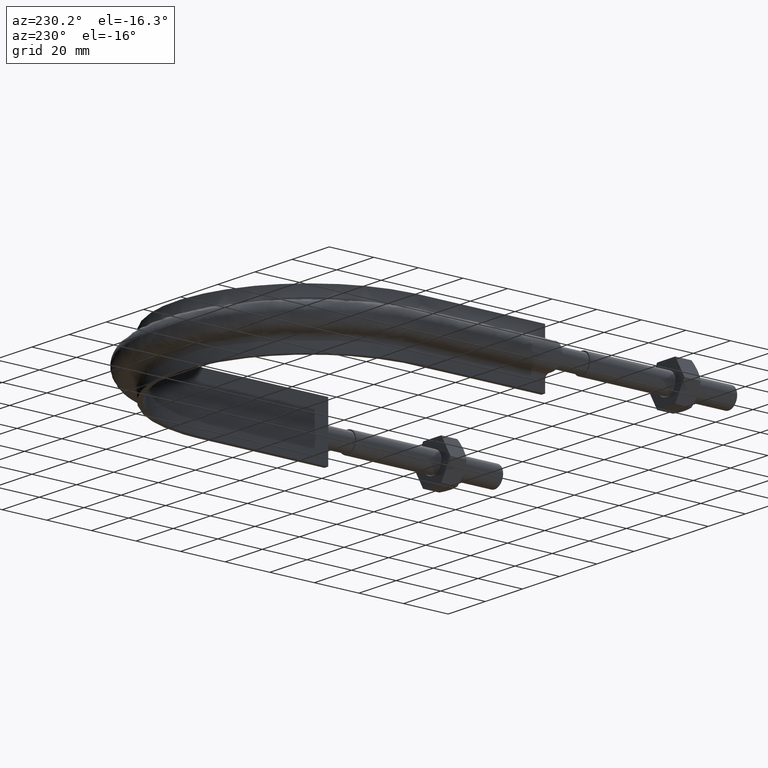
[diagram: clean part render]
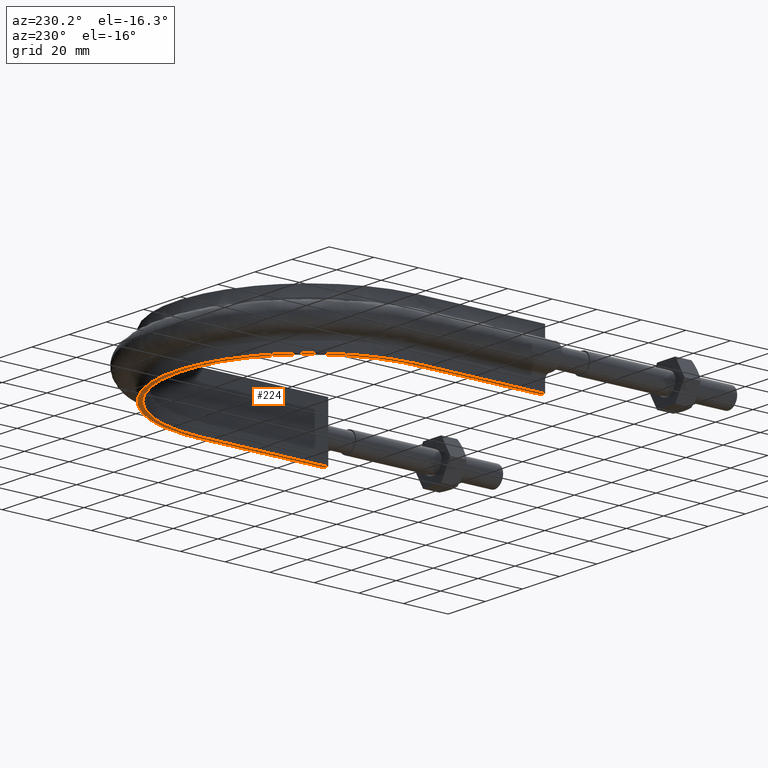
[diagram: same view with one face highlighted and labeled with its STEP entity id]
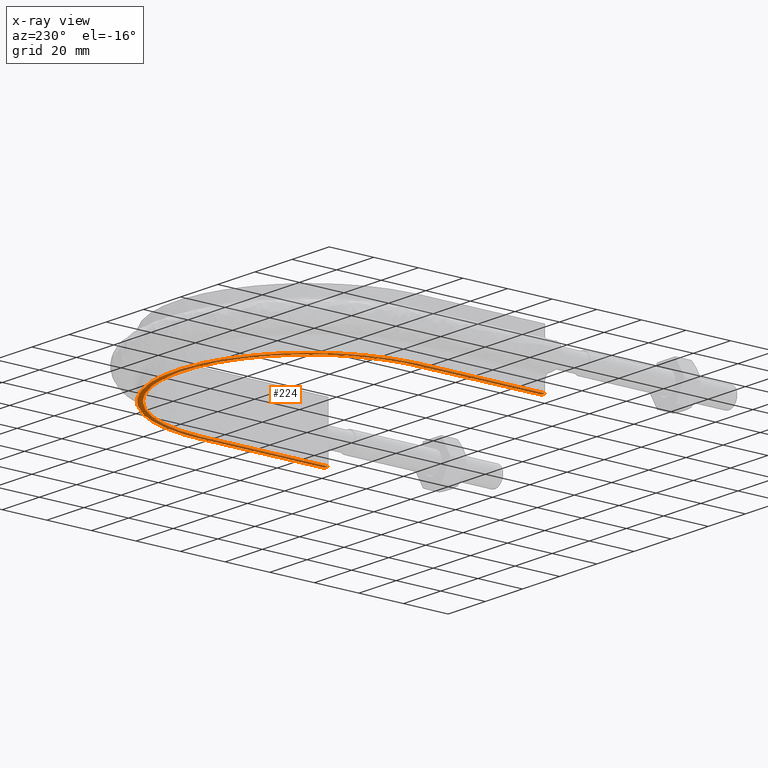
[diagram: x-ray of the same camera — body ghosted, the highlighted face saturated]
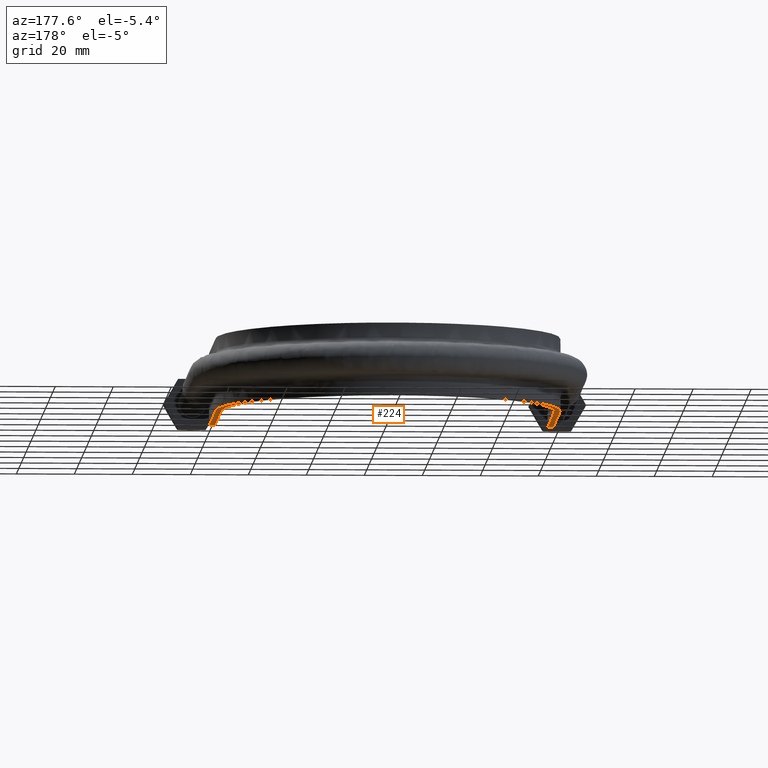
[diagram: same view with one face highlighted and labeled with its STEP entity id]
A machine part, auxiliary view. The second image highlights one B-rep face of the part: STEP entity #224.
The next image is the same camera in x-ray: the body ghosted, the highlighted face saturated — about 0% of this face is hidden behind the body in this view.
A second angle (auxiliary view) of the same face is appended — the face is thin or edge-on in the first view.
In plain terms, the highlighted planar face has unit normal (0, 0, 1).
Its self-contained STEP definition (entity closure, byte-faithful):
#224 = ADVANCED_FACE( '', ( #305 ), #306, .F. );
#305 = FACE_OUTER_BOUND( '', #968, .T. );
#306 = PLANE( '', #969 );
#968 = EDGE_LOOP( '', ( #1330, #1331, #1332, #1333 ) );
#969 = AXIS2_PLACEMENT_3D( '', #1334, #1335, #1336 );
#1330 = ORIENTED_EDGE( '', *, *, #1828, .F. );
#1331 = ORIENTED_EDGE( '', *, *, #1820, .F. );
#1332 = ORIENTED_EDGE( '', *, *, #1827, .F. );
#1333 = ORIENTED_EDGE( '', *, *, #1825, .F. );
#1334 = CARTESIAN_POINT( '', ( 75.0000000000000, 209.300000000000, -12.5000000000000 ) );
#1335 = DIRECTION( '', ( 0.000000000000000, 0.000000000000000, 1.00000000000000 ) );
#1336 = DIRECTION( '', ( 1.00000000000000, 0.000000000000000, 0.000000000000000 ) );
#1820 = EDGE_CURVE( '', #1972, #1968, #1974, .T. );
#1825 = EDGE_CURVE( '', #1980, #1982, #1983, .T. );
#1827 = EDGE_CURVE( '', #1982, #1972, #1985, .F. );
#1828 = EDGE_CURVE( '', #1968, #1980, #1986, .F. );
#1968 = VERTEX_POINT( '', #2214 );
#1972 = VERTEX_POINT( '', #2220 );
#1974 = LINE( '', #2252, #2253 );
#1980 = VERTEX_POINT( '', #2362 );
#1982 = VERTEX_POINT( '', #2365 );
#1983 = LINE( '', #2366, #2367 );
#1985 = B_SPLINE_CURVE_WITH_KNOTS( '', 3, ( #2399, #2400, #2401, #2402, #2403, #2404, #2405, #2406, #2407, #2408, #2409, #2410, #2411, #2412, #2413, #2414 ), .UNSPECIFIED., .F., .F., ( 4, 3, 1, 1, 1, 1, 1, 1, 3, 4 ), ( 0.0630615640598999, 1.00000000000000, 2.00000000000000, 3.00000000000000, 4.00000000000000, 5.00000000000000, 6.00000000000000, 7.00000000000000, 8.00000000000000, 8.93693843594010 ), .UNSPECIFIED. );
#1986 = B_SPLINE_CURVE_WITH_KNOTS( '', 3, ( #2415, #2416, #2417, #2418, #2419, #2420, #2421, #2422, #2423, #2424, #2425, #2426, #2427, #2428, #2429, #2430 ), .UNSPECIFIED., .F., .F., ( 4, 3, 1, 1, 1, 1, 1, 1, 3, 4 ), ( -8.93693843594010, -8.00000000000000, -7.00000000000000, -6.00000000000000, -5.00000000000000, -4.00000000000000, -3.00000000000000, -2.00000000000000, -1.00000000000000, -0.0630615640599001 ), .UNSPECIFIED. );
#2214 = CARTESIAN_POINT( '', ( -57.4000000000000, 79.3000000000000, -12.5000000000000 ) );
#2220 = CARTESIAN_POINT( '', ( -59.4000000000000, 79.3000000000000, -12.5000000000000 ) );
#2252 = CARTESIAN_POINT( '', ( -75.0000000000000, 79.3000000000000, -12.5000000000000 ) );
#2253 = VECTOR( '', #2857, 1000.00000000000 );
#2362 = CARTESIAN_POINT( '', ( 57.4000000000000, 79.3000000000000, -12.5000000000000 ) );
#2365 = CARTESIAN_POINT( '', ( 59.4000000000000, 79.3000000000000, -12.5000000000000 ) );
#2366 = CARTESIAN_POINT( '', ( -75.0000000000000, 79.3000000000000, -12.5000000000000 ) );
#2367 = VECTOR( '', #2860, 1000.00000000000 );
#2399 = CARTESIAN_POINT( '', ( -59.4000000000000, 79.3000000000000, -12.5000000000000 ) );
#2400 = CARTESIAN_POINT( '', ( -59.4000000000000, 98.0700000000001, -12.5000000000000 ) );
#2401 = CARTESIAN_POINT( '', ( -59.4000000000000, 116.840000000000, -12.5000000000000 ) );
#2402 = CARTESIAN_POINT( '', ( -59.4000000000000, 135.610000000000, -12.5000000000000 ) );
#2403 = CARTESIAN_POINT( '', ( -59.4000000000000, 144.484817836499, -12.5000000000000 ) );
#2404 = CARTESIAN_POINT( '', ( -55.3444933644878, 162.266836188810, -12.5000000000000 ) );
#2405 = CARTESIAN_POINT( '', ( -38.2995777447149, 183.635011205915, -12.5000000000000 ) );
#2406 = CARTESIAN_POINT( '', ( -13.6689610391051, 195.497859339138, -12.5000000000000 ) );
#2407 = CARTESIAN_POINT( '', ( 13.6689610391052, 195.497859339137, -12.5000000000000 ) );
#2408 = CARTESIAN_POINT( '', ( 38.2995777447150, 183.635011205915, -12.5000000000000 ) );
#2409 = CARTESIAN_POINT( '', ( 55.3444933644878, 162.266836188810, -12.5000000000000 ) );
#2410 = CARTESIAN_POINT( '', ( 59.4000000000000, 144.484817836499, -12.5000000000000 ) );
#2411 = CARTESIAN_POINT( '', ( 59.4000000000000, 135.610000000000, -12.5000000000000 ) );
#2412 = CARTESIAN_POINT( '', ( 59.4000000000000, 116.840000000000, -12.5000000000000 ) );
#2413 = CARTESIAN_POINT( '', ( 59.4000000000000, 98.0700000000000, -12.5000000000000 ) );
#2414 = CARTESIAN_POINT( '', ( 59.4000000000000, 79.3000000000000, -12.5000000000000 ) );
#2415 = CARTESIAN_POINT( '', ( 57.4000000000000, 79.3000000000000, -12.5000000000000 ) );
#2416 = CARTESIAN_POINT( '', ( 57.4000000000000, 98.0700000000000, -12.5000000000000 ) );
#2417 = CARTESIAN_POINT( '', ( 57.4000000000000, 116.840000000000, -12.5000000000000 ) );
#2418 = CARTESIAN_POINT( '', ( 57.4000000000000, 135.610000000000, -12.5000000000000 ) );
#2419 = CARTESIAN_POINT( '', ( 57.4000000000000, 144.180493203978, -12.5000000000000 ) );
#2420 = CARTESIAN_POINT( '', ( 53.4810424094545, 161.371852668646, -12.5000000000000 ) );
#2421 = CARTESIAN_POINT( '', ( 37.0100296725023, 182.017335605858, -12.5000000000000 ) );
#2422 = CARTESIAN_POINT( '', ( 13.2087266606841, 193.481567469912, -12.5000000000000 ) );
#2423 = CARTESIAN_POINT( '', ( -13.2087266606841, 193.481567469912, -12.5000000000000 ) );
#2424 = CARTESIAN_POINT( '', ( -37.0100296725023, 182.017335605858, -12.5000000000000 ) );
#2425 = CARTESIAN_POINT( '', ( -53.4810424094545, 161.371852668646, -12.5000000000000 ) );
#2426 = CARTESIAN_POINT( '', ( -57.4000000000000, 144.180493203978, -12.5000000000000 ) );
#2427 = CARTESIAN_POINT( '', ( -57.4000000000000, 135.610000000000, -12.5000000000000 ) );
#2428 = CARTESIAN_POINT( '', ( -57.4000000000000, 116.840000000000, -12.5000000000000 ) );
#2429 = CARTESIAN_POINT( '', ( -57.4000000000000, 98.0700000000000, -12.5000000000000 ) );
#2430 = CARTESIAN_POINT( '', ( -57.4000000000000, 79.3000000000000, -12.5000000000000 ) );
#2857 = DIRECTION( '', ( 1.00000000000000, -1.83649404852125E-048, 0.000000000000000 ) );
#2860 = DIRECTION( '', ( 1.00000000000000, -1.83649404852125E-048, 0.000000000000000 ) );